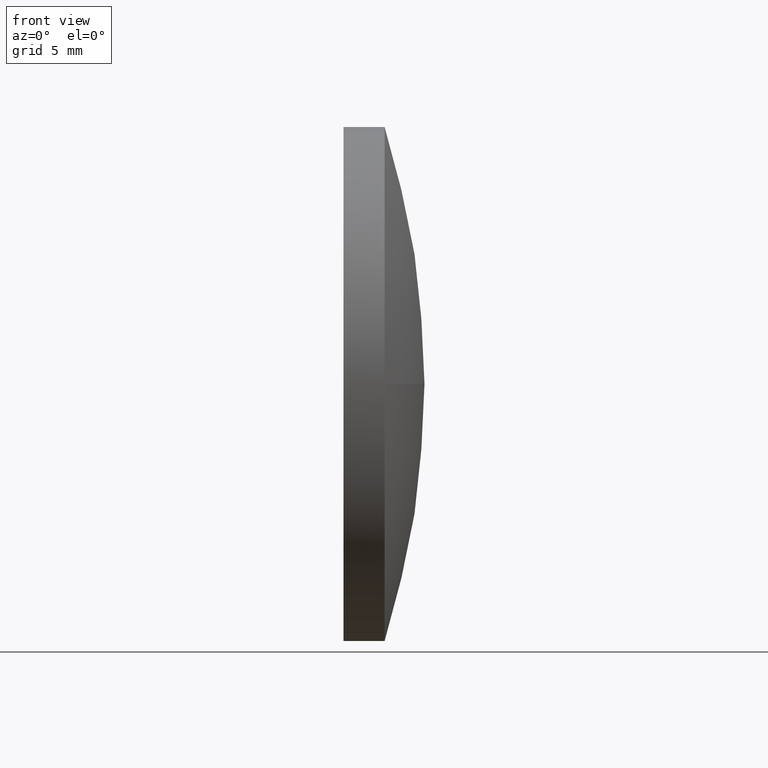
[diagram: clean part render]
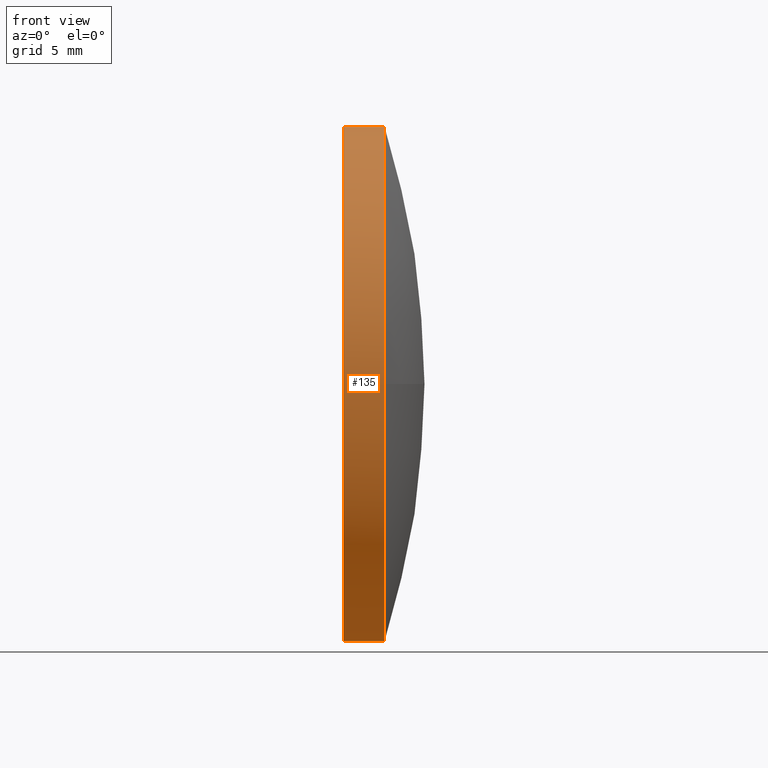
[diagram: same view with one face highlighted and labeled with its STEP entity id]
A machine part, front view. The second image highlights one B-rep face of the part: STEP entity #135.
In plain terms, the highlighted cylindrical surface (partial cylindrical patch) has radius 12.5 mm, axis along (-1, -0, -0).
Its self-contained STEP definition (entity closure, byte-faithful):
#2 = LINE ( 'NONE', #151, #123 ) ;
#4 = LINE ( 'NONE', #117, #96 ) ;
#10 = CARTESIAN_POINT ( 'NONE',  ( 848.2559013236141300, 251.6067305368113700, 0.0000000000000000000 ) ) ;
#12 = VERTEX_POINT ( 'NONE', #49 ) ;
#20 = CARTESIAN_POINT ( 'NONE',  ( 846.2559013236141300, 251.6067305368113700, 12.50000000000001100 ) ) ;
#23 = DIRECTION ( 'NONE',  ( -1.000000000000000000, -0.0000000000000000000, -0.0000000000000000000 ) ) ;
#30 = VERTEX_POINT ( 'NONE', #59 ) ;
#32 = EDGE_CURVE ( 'NONE', #52, #146, #124, .T. ) ;
#36 = CARTESIAN_POINT ( 'NONE',  ( 848.2559013236141300, 251.6067305368113700, 0.0000000000000000000 ) ) ;
#38 = EDGE_CURVE ( 'NONE', #30, #12, #51, .T. ) ;
#39 = DIRECTION ( 'NONE',  ( 0.0000000000000000000, 0.0000000000000000000, 1.000000000000000000 ) ) ;
#42 = ORIENTED_EDGE ( 'NONE', *, *, #38, .T. ) ;
#46 = DIRECTION ( 'NONE',  ( -1.000000000000000000, -0.0000000000000000000, -0.0000000000000000000 ) ) ;
#49 = CARTESIAN_POINT ( 'NONE',  ( 848.2559013236141300, 251.6067305368113700, 12.50000000000001100 ) ) ;
#51 = CIRCLE ( 'NONE', #133, 12.50000000000001100 ) ;
#52 = VERTEX_POINT ( 'NONE', #132 ) ;
#58 = AXIS2_PLACEMENT_3D ( 'NONE', #160, #46, #73 ) ;
#59 = CARTESIAN_POINT ( 'NONE',  ( 848.2559013236141300, 239.1067305368113700, 0.0000000000000000000 ) ) ;
#60 = ORIENTED_EDGE ( 'NONE', *, *, #97, .T. ) ;
#63 = CYLINDRICAL_SURFACE ( 'NONE', #86, 12.50000000000001100 ) ;
#68 = AXIS2_PLACEMENT_3D ( 'NONE', #10, #23, #131 ) ;
#73 = DIRECTION ( 'NONE',  ( 0.0000000000000000000, 0.0000000000000000000, 1.000000000000000000 ) ) ;
#86 = AXIS2_PLACEMENT_3D ( 'NONE', #99, #127, #39 ) ;
#88 = VERTEX_POINT ( 'NONE', #183 ) ;
#92 = DIRECTION ( 'NONE',  ( -1.000000000000000000, -0.0000000000000000000, -0.0000000000000000000 ) ) ;
#95 = DIRECTION ( 'NONE',  ( -1.000000000000000000, -0.0000000000000000000, -0.0000000000000000000 ) ) ;
#96 = VECTOR ( 'NONE', #171, 1000.000000000000000 ) ;
#97 = EDGE_CURVE ( 'NONE', #12, #146, #2, .T. ) ;
#99 = CARTESIAN_POINT ( 'NONE',  ( 843.8902854208531600, 251.6067305368113700, 0.0000000000000000000 ) ) ;
#102 = ORIENTED_EDGE ( 'NONE', *, *, #182, .F. ) ;
#117 = CARTESIAN_POINT ( 'NONE',  ( 843.8902854208531600, 251.6067305368113700, -12.50000000000001100 ) ) ;
#123 = VECTOR ( 'NONE', #92, 1000.000000000000000 ) ;
#124 = CIRCLE ( 'NONE', #58, 12.50000000000001100 ) ;
#126 = ORIENTED_EDGE ( 'NONE', *, *, #32, .F. ) ;
#127 = DIRECTION ( 'NONE',  ( -1.000000000000000000, -0.0000000000000000000, -0.0000000000000000000 ) ) ;
#129 = EDGE_CURVE ( 'NONE', #88, #30, #170, .T. ) ;
#131 = DIRECTION ( 'NONE',  ( 0.0000000000000000000, 0.0000000000000000000, 1.000000000000000000 ) ) ;
#132 = CARTESIAN_POINT ( 'NONE',  ( 846.2559013236141300, 251.6067305368113700, -12.50000000000001100 ) ) ;
#133 = AXIS2_PLACEMENT_3D ( 'NONE', #36, #95, #167 ) ;
#135 = ADVANCED_FACE ( 'NONE', ( #136 ), #63, .T. ) ;
#136 = FACE_OUTER_BOUND ( 'NONE', #176, .T. ) ;
#146 = VERTEX_POINT ( 'NONE', #20 ) ;
#151 = CARTESIAN_POINT ( 'NONE',  ( 843.8902854208531600, 251.6067305368113700, 12.50000000000001100 ) ) ;
#160 = CARTESIAN_POINT ( 'NONE',  ( 846.2559013236141300, 251.6067305368113700, 0.0000000000000000000 ) ) ;
#167 = DIRECTION ( 'NONE',  ( 0.0000000000000000000, 0.0000000000000000000, 1.000000000000000000 ) ) ;
#170 = CIRCLE ( 'NONE', #68, 12.50000000000001100 ) ;
#171 = DIRECTION ( 'NONE',  ( -1.000000000000000000, -0.0000000000000000000, -0.0000000000000000000 ) ) ;
#176 = EDGE_LOOP ( 'NONE', ( #102, #179, #42, #60, #126 ) ) ;
#179 = ORIENTED_EDGE ( 'NONE', *, *, #129, .T. ) ;
#182 = EDGE_CURVE ( 'NONE', #88, #52, #4, .T. ) ;
#183 = CARTESIAN_POINT ( 'NONE',  ( 848.2559013236141300, 251.6067305368113700, -12.50000000000001100 ) ) ;